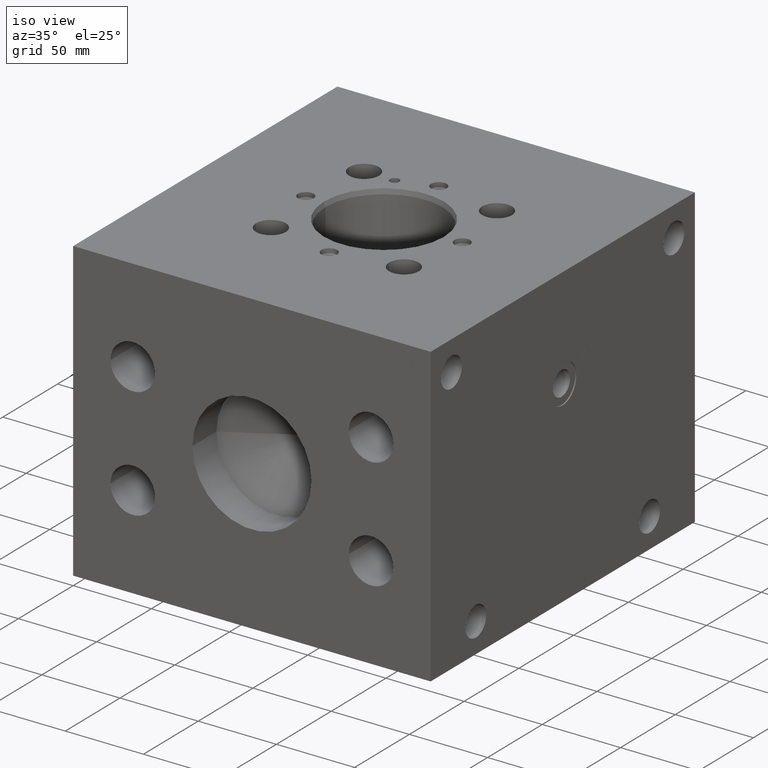
[diagram: clean part render]
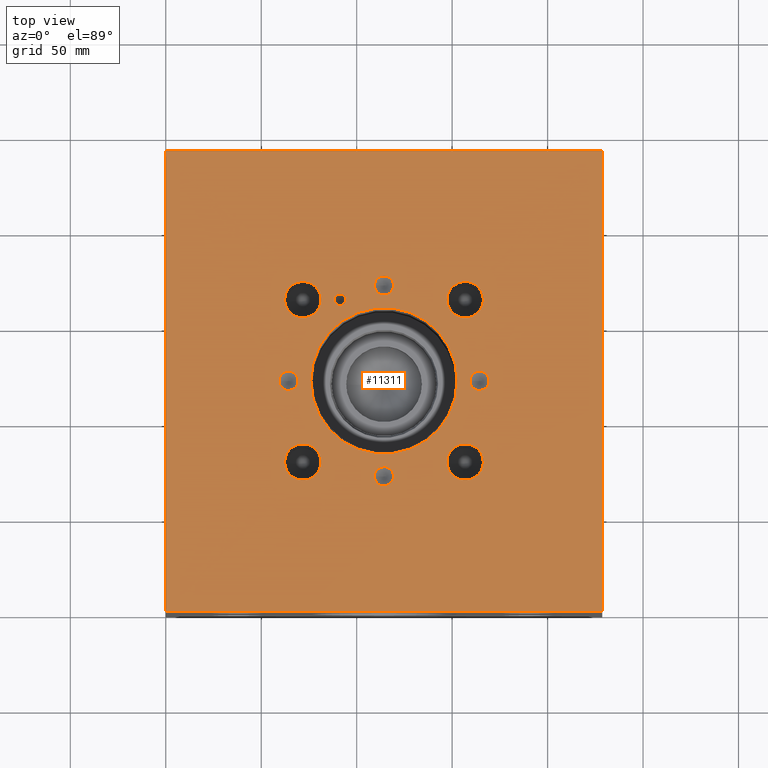
[diagram: tour spotlight — one face highlighted and labeled with its STEP entity id]
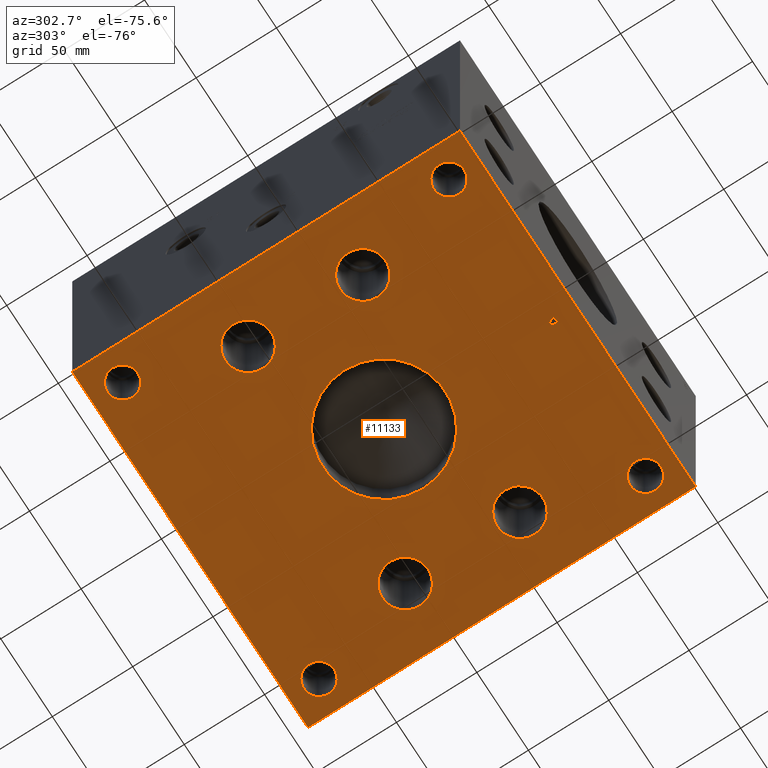
[diagram: tour spotlight — one face highlighted and labeled with its STEP entity id]
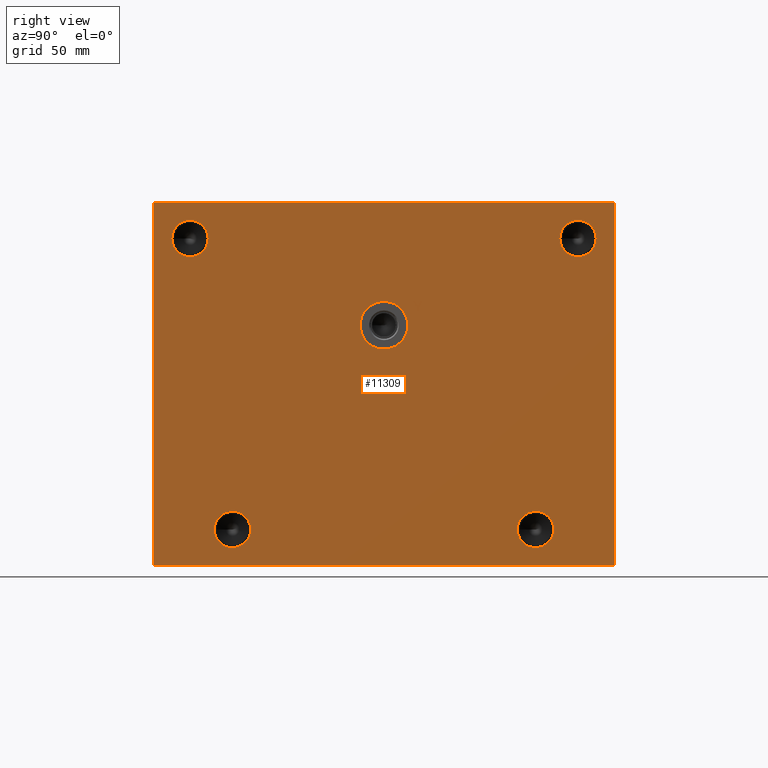
[diagram: tour spotlight — one face highlighted and labeled with its STEP entity id]
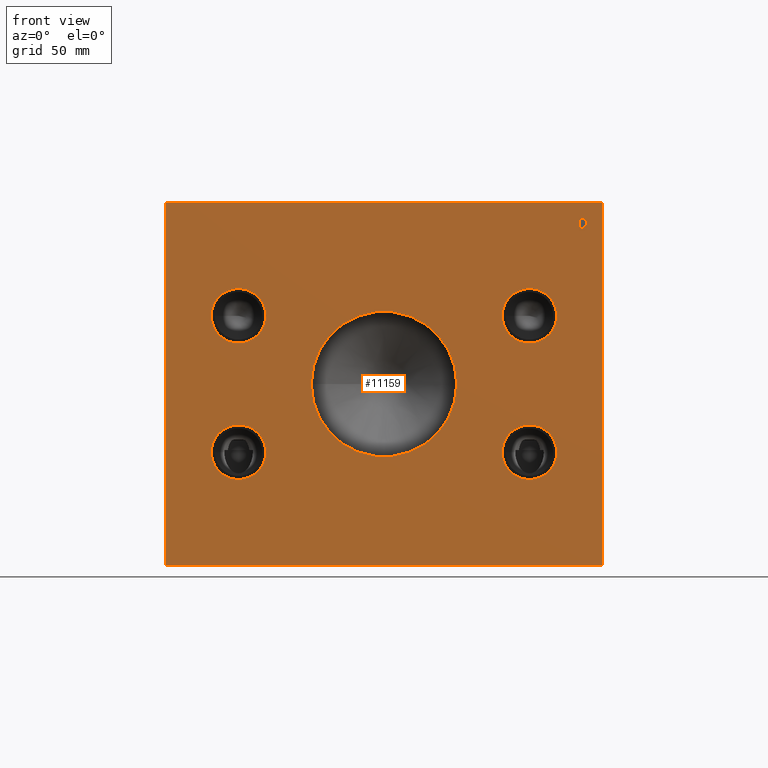
[diagram: tour spotlight — one face highlighted and labeled with its STEP entity id]
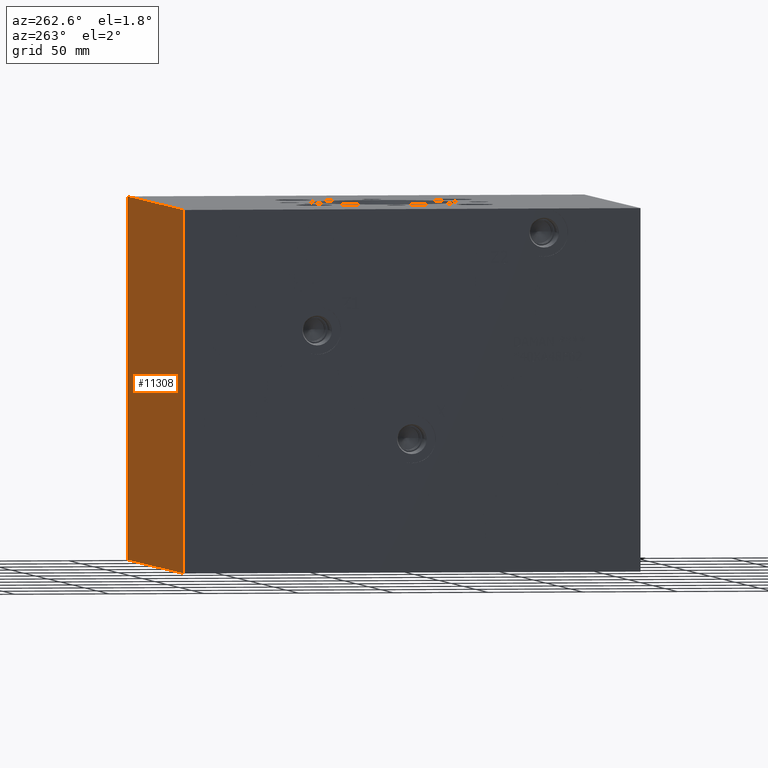
[diagram: tour spotlight — one face highlighted and labeled with its STEP entity id]
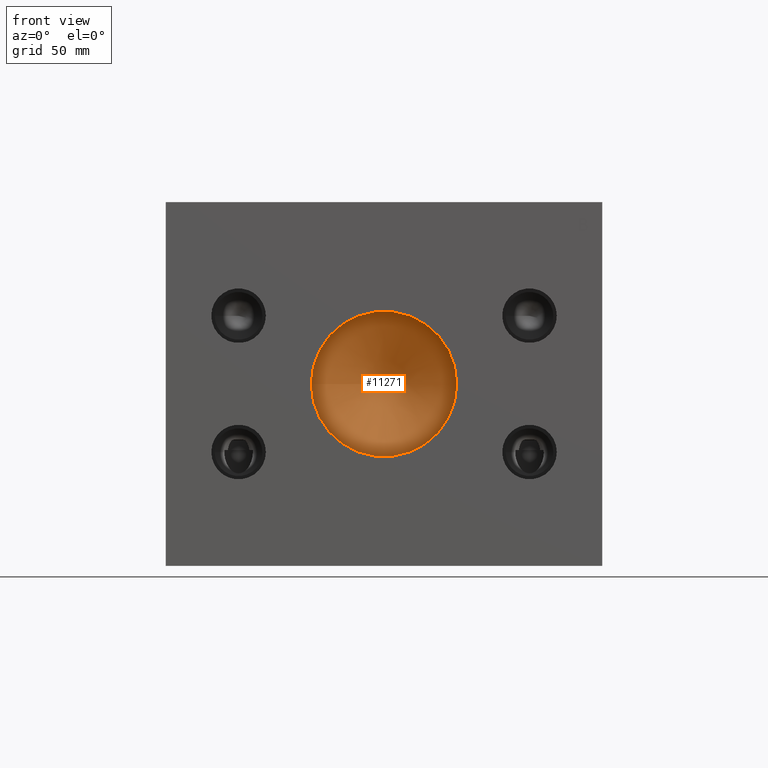
[diagram: tour spotlight — one face highlighted and labeled with its STEP entity id]
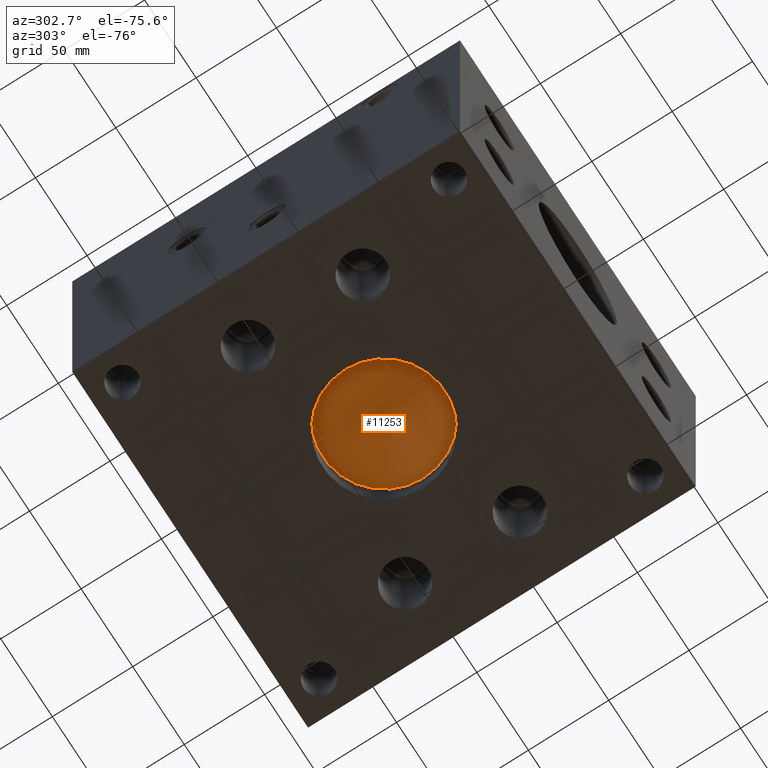
[diagram: tour spotlight — one face highlighted and labeled with its STEP entity id]
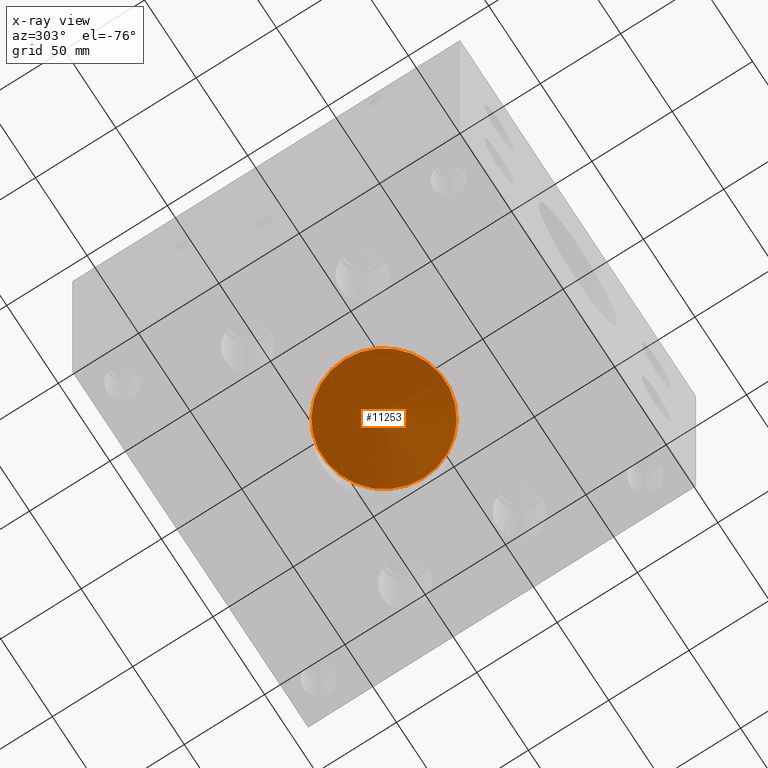
[diagram: x-ray of the same camera — body ghosted, this tour face saturated]
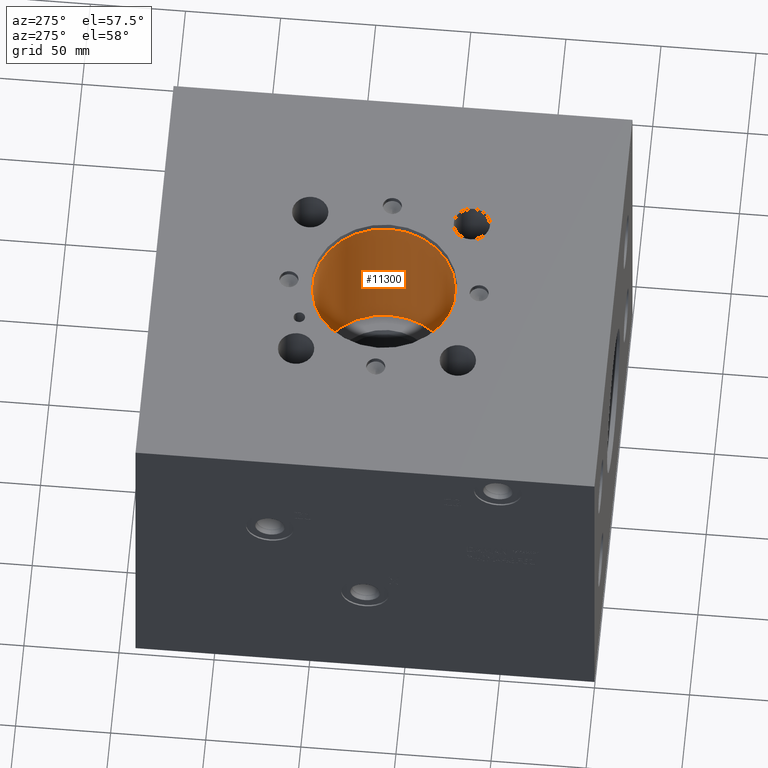
[diagram: tour spotlight — one face highlighted and labeled with its STEP entity id]
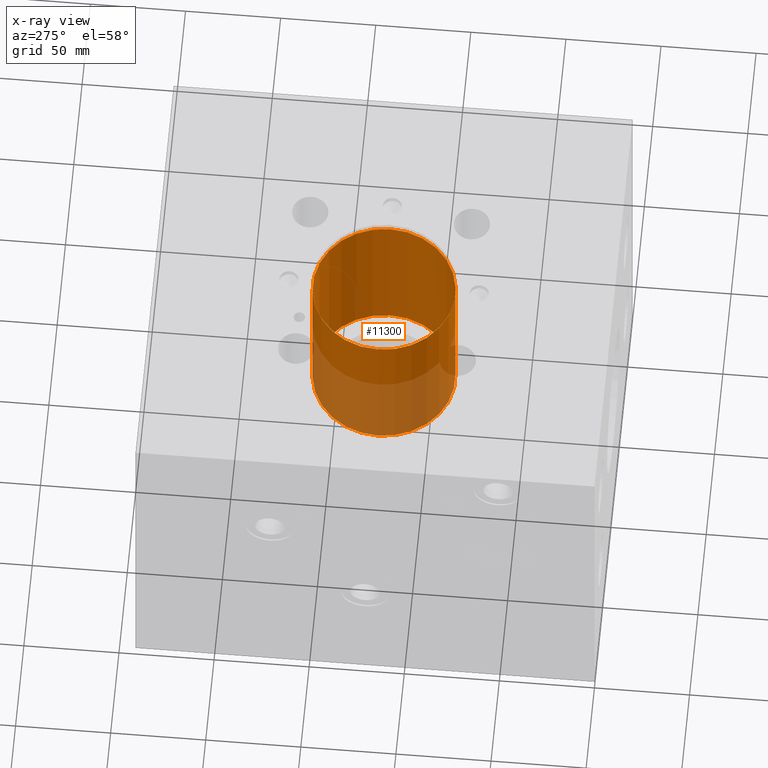
[diagram: x-ray of the same camera — body ghosted, this tour face saturated]
A machine part: a face-by-face anatomy tour. The part has 575 B-rep faces; the first image is the clean iso view, then the 8 largest visible faces are spotlighted one at a time (largest first), each with its STEP entity span.

Face 1 — top view, entity #11311. In plain terms, the highlighted planar face has unit normal (0, 0, 1).
Definition (entity closure, byte-faithful):
#336=CIRCLE('',#11971,2.9972);
#337=CIRCLE('',#11972,2.9972);
#340=CIRCLE('',#11977,5.0038);
#341=CIRCLE('',#11978,5.0038);
#344=CIRCLE('',#11983,5.0038);
#345=CIRCLE('',#11984,5.0038);
#348=CIRCLE('',#11989,5.0038);
#349=CIRCLE('',#11990,5.0038);
#352=CIRCLE('',#11995,5.0038);
#353=CIRCLE('',#11996,5.0038);
#359=CIRCLE('',#12005,9.525);
#360=CIRCLE('',#12006,9.525);
#366=CIRCLE('',#12016,9.525);
#367=CIRCLE('',#12017,9.525);
#373=CIRCLE('',#12027,9.525);
#374=CIRCLE('',#12028,9.525);
#380=CIRCLE('',#12038,9.525);
#381=CIRCLE('',#12039,9.525);
#382=CIRCLE('',#12042,38.3159);
#383=CIRCLE('',#12043,38.3159);
#782=FACE_BOUND('',#2030,.T.);
#783=FACE_BOUND('',#2031,.T.);
#784=FACE_BOUND('',#2032,.T.);
#785=FACE_BOUND('',#2033,.T.);
#786=FACE_BOUND('',#2034,.T.);
#787=FACE_BOUND('',#2035,.T.);
#788=FACE_BOUND('',#2036,.T.);
#789=FACE_BOUND('',#2037,.T.);
#790=FACE_BOUND('',#2038,.T.);
#791=FACE_BOUND('',#2039,.T.);
#1365=FACE_OUTER_BOUND('',#2029,.T.);
#2029=EDGE_LOOP('',(#9936,#9937,#9938,#9939));
#2030=EDGE_LOOP('',(#9940,#9941));
#2031=EDGE_LOOP('',(#9942,#9943));
#2032=EDGE_LOOP('',(#9944,#9945));
#2033=EDGE_LOOP('',(#9946,#9947));
#2034=EDGE_LOOP('',(#9948,#9949));
#2035=EDGE_LOOP('',(#9950,#9951));
#2036=EDGE_LOOP('',(#9952,#9953));
#2037=EDGE_LOOP('',(#9954,#9955));
#2038=EDGE_LOOP('',(#9956,#9957));
#2039=EDGE_LOOP('',(#9958,#9959));
#2395=LINE('',#16408,#3483);
#3011=LINE('',#18290,#4099);
#3126=LINE('',#19207,#4214);
#3128=LINE('',#19210,#4216);
#3483=VECTOR('',#12643,10.);
#4099=VECTOR('',#13745,10.);
#4214=VECTOR('',#14638,10.);
#4216=VECTOR('',#14642,10.);
#4535=VERTEX_POINT('',#16405);
#4536=VERTEX_POINT('',#16407);
#5015=VERTEX_POINT('',#18288);
#5223=VERTEX_POINT('',#19012);
#5224=VERTEX_POINT('',#19013);
#5228=VERTEX_POINT('',#19025);
#5229=VERTEX_POINT('',#19026);
#5233=VERTEX_POINT('',#19038);
#5234=VERTEX_POINT('',#19039);
#5238=VERTEX_POINT('',#19051);
#5239=VERTEX_POINT('',#19052);
#5243=VERTEX_POINT('',#19064);
#5244=VERTEX_POINT('',#19065);
#5251=VERTEX_POINT('',#19084);
#5252=VERTEX_POINT('',#19085);
#5259=VERTEX_POINT('',#19106);
#5260=VERTEX_POINT('',#19107);
#5267=VERTEX_POINT('',#19128);
#5268=VERTEX_POINT('',#19129);
#5275=VERTEX_POINT('',#19150);
#5276=VERTEX_POINT('',#19151);
#5277=VERTEX_POINT('',#19158);
#5278=VERTEX_POINT('',#19159);
#5294=VERTEX_POINT('',#19206);
#5771=EDGE_CURVE('',#4536,#4535,#2395,.T.);
#6479=EDGE_CURVE('',#4535,#5015,#3011,.T.);
#6759=EDGE_CURVE('',#5223,#5224,#336,.T.);
#6760=EDGE_CURVE('',#5224,#5223,#337,.T.);
#6765=EDGE_CURVE('',#5228,#5229,#340,.T.);
#6766=EDGE_CURVE('',#5229,#5228,#341,.T.);
#6771=EDGE_CURVE('',#5233,#5234,#344,.T.);
#6772=EDGE_CURVE('',#5234,#5233,#345,.T.);
#6777=EDGE_CURVE('',#5238,#5239,#348,.T.);
#6778=EDGE_CURVE('',#5239,#5238,#349,.T.);
#6783=EDGE_CURVE('',#5243,#5244,#352,.T.);
#6784=EDGE_CURVE('',#5244,#5243,#353,.T.);
#6792=EDGE_CURVE('',#5251,#5252,#359,.T.);
#6793=EDGE_CURVE('',#5252,#5251,#360,.T.);
#6802=EDGE_CURVE('',#5259,#5260,#366,.T.);
#6803=EDGE_CURVE('',#5260,#5259,#367,.T.);
#6812=EDGE_CURVE('',#5267,#5268,#373,.T.);
#6813=EDGE_CURVE('',#5268,#5267,#374,.T.);
#6822=EDGE_CURVE('',#5275,#5276,#380,.T.);
#6823=EDGE_CURVE('',#5276,#5275,#381,.T.);
#6826=EDGE_CURVE('',#5277,#5278,#382,.T.);
#6827=EDGE_CURVE('',#5278,#5277,#383,.T.);
#6848=EDGE_CURVE('',#5294,#4536,#3126,.T.);
#6850=EDGE_CURVE('',#5015,#5294,#3128,.T.);
#9936=ORIENTED_EDGE('',*,*,#6479,.T.);
#9937=ORIENTED_EDGE('',*,*,#6850,.T.);
#9938=ORIENTED_EDGE('',*,*,#6848,.T.);
#9939=ORIENTED_EDGE('',*,*,#5771,.T.);
#9940=ORIENTED_EDGE('',*,*,#6759,.T.);
#9941=ORIENTED_EDGE('',*,*,#6760,.T.);
#9942=ORIENTED_EDGE('',*,*,#6765,.T.);
#9943=ORIENTED_EDGE('',*,*,#6766,.T.);
#9944=ORIENTED_EDGE('',*,*,#6771,.T.);
#9945=ORIENTED_EDGE('',*,*,#6772,.T.);
#9946=ORIENTED_EDGE('',*,*,#6777,.T.);
#9947=ORIENTED_EDGE('',*,*,#6778,.T.);
#9948=ORIENTED_EDGE('',*,*,#6783,.T.);
#9949=ORIENTED_EDGE('',*,*,#6784,.T.);
#9950=ORIENTED_EDGE('',*,*,#6792,.T.);
#9951=ORIENTED_EDGE('',*,*,#6793,.T.);
#9952=ORIENTED_EDGE('',*,*,#6802,.T.);
#9953=ORIENTED_EDGE('',*,*,#6803,.T.);
#9954=ORIENTED_EDGE('',*,*,#6812,.T.);
#9955=ORIENTED_EDGE('',*,*,#6813,.T.);
#9956=ORIENTED_EDGE('',*,*,#6822,.T.);
#9957=ORIENTED_EDGE('',*,*,#6823,.T.);
#9958=ORIENTED_EDGE('',*,*,#6826,.T.);
#9959=ORIENTED_EDGE('',*,*,#6827,.T.);
#10325=PLANE('',#12069);
#11311=ADVANCED_FACE('',(#1365,#782,#783,#784,#785,#786,#787,#788,#789,
#790,#791),#10325,.T.);
#11971=AXIS2_PLACEMENT_3D('',#19014,#14419,#14420);
#11972=AXIS2_PLACEMENT_3D('',#19015,#14421,#14422);
#11977=AXIS2_PLACEMENT_3D('',#19027,#14433,#14434);
#11978=AXIS2_PLACEMENT_3D('',#19028,#14435,#14436);
#11983=AXIS2_PLACEMENT_3D('',#19040,#14447,#14448);
#11984=AXIS2_PLACEMENT_3D('',#19041,#14449,#14450);
#11989=AXIS2_PLACEMENT_3D('',#19053,#14461,#14462);
#11990=AXIS2_PLACEMENT_3D('',#19054,#14463,#14464);
#11995=AXIS2_PLACEMENT_3D('',#19066,#14475,#14476);
#11996=AXIS2_PLACEMENT_3D('',#19067,#14477,#14478);
#12005=AXIS2_PLACEMENT_3D('',#19086,#14497,#14498);
#12006=AXIS2_PLACEMENT_3D('',#19087,#14499,#14500);
#12016=AXIS2_PLACEMENT_3D('',#19108,#14522,#14523);
#12017=AXIS2_PLACEMENT_3D('',#19109,#14524,#14525);
#12027=AXIS2_PLACEMENT_3D('',#19130,#14547,#14548);
#12028=AXIS2_PLACEMENT_3D('',#19131,#14549,#14550);
#12038=AXIS2_PLACEMENT_3D('',#19152,#14572,#14573);
#12039=AXIS2_PLACEMENT_3D('',#19153,#14574,#14575);
#12042=AXIS2_PLACEMENT_3D('',#19160,#14582,#14583);
#12043=AXIS2_PLACEMENT_3D('',#19161,#14584,#14585);
#12069=AXIS2_PLACEMENT_3D('',#19212,#14645,#14646);
#12643=DIRECTION('',(0.,-1.,0.));
#13745=DIRECTION('',(1.,0.,0.));
#14419=DIRECTION('center_axis',(0.,0.,-1.));
#14420=DIRECTION('ref_axis',(1.,0.,0.));
#14421=DIRECTION('center_axis',(0.,0.,-1.));
#14422=DIRECTION('ref_axis',(1.,0.,0.));
#14433=DIRECTION('center_axis',(0.,0.,-1.));
#14434=DIRECTION('ref_axis',(1.,0.,0.));
#14435=DIRECTION('center_axis',(0.,0.,-1.));
#14436=DIRECTION('ref_axis',(1.,0.,0.));
#14447=DIRECTION('center_axis',(0.,0.,-1.));
#14448=DIRECTION('ref_axis',(1.,0.,0.));
#14449=DIRECTION('center_axis',(0.,0.,-1.));
#14450=DIRECTION('ref_axis',(1.,0.,0.));
#14461=DIRECTION('center_axis',(0.,0.,-1.));
#14462=DIRECTION('ref_axis',(1.,0.,0.));
#14463=DIRECTION('center_axis',(0.,0.,-1.));
#14464=DIRECTION('ref_axis',(1.,0.,0.));
#14475=DIRECTION('center_axis',(0.,0.,-1.));
#14476=DIRECTION('ref_axis',(1.,0.,0.));
#14477=DIRECTION('center_axis',(0.,0.,-1.));
#14478=DIRECTION('ref_axis',(1.,0.,0.));
#14497=DIRECTION('center_axis',(0.,0.,-1.));
#14498=DIRECTION('ref_axis',(1.,0.,0.));
#14499=DIRECTION('center_axis',(0.,0.,-1.));
#14500=DIRECTION('ref_axis',(1.,0.,0.));
#14522=DIRECTION('center_axis',(0.,0.,-1.));
#14523=DIRECTION('ref_axis',(1.,0.,0.));
#14524=DIRECTION('center_axis',(0.,0.,-1.));
#14525=DIRECTION('ref_axis',(1.,0.,0.));
#14547=DIRECTION('center_axis',(0.,0.,-1.));
#14548=DIRECTION('ref_axis',(1.,0.,0.));
#14549=DIRECTION('center_axis',(0.,0.,-1.));
#14550=DIRECTION('ref_axis',(1.,0.,0.));
#14572=DIRECTION('center_axis',(0.,0.,-1.));
#14573=DIRECTION('ref_axis',(1.,0.,0.));
#14574=DIRECTION('center_axis',(0.,0.,-1.));
#14575=DIRECTION('ref_axis',(1.,0.,0.));
#14582=DIRECTION('center_axis',(0.,0.,-1.));
#14583=DIRECTION('ref_axis',(1.,0.,0.));
#14584=DIRECTION('center_axis',(0.,0.,-1.));
#14585=DIRECTION('ref_axis',(1.,0.,0.));
#14638=DIRECTION('',(-1.,0.,0.));
#14642=DIRECTION('',(0.,1.,0.));
#14645=DIRECTION('center_axis',(0.,0.,1.));
#14646=DIRECTION('ref_axis',(1.,0.,0.));
#16405=CARTESIAN_POINT('',(0.,0.,190.5));
#16407=CARTESIAN_POINT('',(0.,241.3,190.5));
#16408=CARTESIAN_POINT('',(0.,241.3,190.5));
#18288=CARTESIAN_POINT('',(228.6,0.,190.5));
#18290=CARTESIAN_POINT('',(0.,0.,190.5));
#19012=CARTESIAN_POINT('',(94.2848,163.1696,190.5));
#19013=CARTESIAN_POINT('',(88.2904,163.1696,190.5));
#19014=CARTESIAN_POINT('Origin',(91.2876,163.1696,190.5));
#19015=CARTESIAN_POINT('Origin',(91.2876,163.1696,190.5));
#19025=CARTESIAN_POINT('',(69.2912,120.6499978,190.5));
#19026=CARTESIAN_POINT('',(59.2836,120.6499978,190.5));
#19027=CARTESIAN_POINT('Origin',(64.2874,120.6499978,190.5));
#19028=CARTESIAN_POINT('Origin',(64.2874,120.6499978,190.5));
#19038=CARTESIAN_POINT('',(119.3038022,70.6374,190.5));
#19039=CARTESIAN_POINT('',(109.2962022,70.6374,190.5));
#19040=CARTESIAN_POINT('Origin',(114.3000022,70.6374,190.5));
#19041=CARTESIAN_POINT('Origin',(114.3000022,70.6374,190.5));
#19051=CARTESIAN_POINT('',(169.3164,120.6499978,190.5));
#19052=CARTESIAN_POINT('',(159.3088,120.6499978,190.5));
#19053=CARTESIAN_POINT('Origin',(164.3126,120.6499978,190.5));
#19054=CARTESIAN_POINT('Origin',(164.3126,120.6499978,190.5));
#19064=CARTESIAN_POINT('',(119.3038022,170.6626,190.5));
#19065=CARTESIAN_POINT('',(109.2962022,170.6626,190.5));
#19066=CARTESIAN_POINT('Origin',(114.3000022,170.6626,190.5));
#19067=CARTESIAN_POINT('Origin',(114.3000022,170.6626,190.5));
#19084=CARTESIAN_POINT('',(81.3054,163.1696,190.5));
#19085=CARTESIAN_POINT('',(62.2554,163.1696,190.5));
#19086=CARTESIAN_POINT('Origin',(71.7804,163.1696,190.5));
#19087=CARTESIAN_POINT('Origin',(71.7804,163.1696,190.5));
#19106=CARTESIAN_POINT('',(166.3192,78.1558,190.5));
#19107=CARTESIAN_POINT('',(147.2692,78.1558,190.5));
#19108=CARTESIAN_POINT('Origin',(156.7942,78.1558,190.5));
#19109=CARTESIAN_POINT('Origin',(156.7942,78.1558,190.5));
#19128=CARTESIAN_POINT('',(81.3054,78.1304,190.5));
#19129=CARTESIAN_POINT('',(62.2554,78.1304,190.5));
#19130=CARTESIAN_POINT('Origin',(71.7804,78.1304,190.5));
#19131=CARTESIAN_POINT('Origin',(71.7804,78.1304,190.5));
#19150=CARTESIAN_POINT('',(166.3446,163.1696,190.5));
#19151=CARTESIAN_POINT('',(147.2946,163.1696,190.5));
#19152=CARTESIAN_POINT('Origin',(156.8196,163.1696,190.5));
#19153=CARTESIAN_POINT('Origin',(156.8196,163.1696,190.5));
#19158=CARTESIAN_POINT('',(152.6159,120.65,190.5));
#19159=CARTESIAN_POINT('',(75.9841,120.65,190.499905870019));
#19160=CARTESIAN_POINT('Origin',(114.3,120.65,190.5));
#19161=CARTESIAN_POINT('Origin',(114.3,120.65,190.5));
#19206=CARTESIAN_POINT('',(228.6,241.3,190.5));
#19207=CARTESIAN_POINT('',(228.6,241.3,190.5));
#19210=CARTESIAN_POINT('',(228.6,0.,190.5));
#19212=CARTESIAN_POINT('Origin',(114.3,120.65,190.5));

Face 2 — auxiliary view, entity #11133. In plain terms, the highlighted planar face has unit normal (0, 0, 1).
Definition (entity closure, byte-faithful):
#140=CIRCLE('',#11648,38.1);
#141=CIRCLE('',#11649,38.1);
#142=CIRCLE('',#11650,14.2875);
#143=CIRCLE('',#11651,14.2875);
#144=CIRCLE('',#11652,14.2875);
#145=CIRCLE('',#11653,14.2875);
#146=CIRCLE('',#11654,14.2875);
#147=CIRCLE('',#11655,14.2875);
#148=CIRCLE('',#11656,14.2875);
#149=CIRCLE('',#11657,14.2875);
#150=CIRCLE('',#11658,9.525);
#151=CIRCLE('',#11659,9.525);
#152=CIRCLE('',#11660,9.525);
#153=CIRCLE('',#11661,9.525);
#154=CIRCLE('',#11662,9.525);
#155=CIRCLE('',#11663,9.525);
#156=CIRCLE('',#11664,9.525);
#157=CIRCLE('',#11665,9.525);
#730=FACE_BOUND('',#1800,.T.);
#731=FACE_BOUND('',#1801,.T.);
#732=FACE_BOUND('',#1802,.T.);
#733=FACE_BOUND('',#1803,.T.);
#734=FACE_BOUND('',#1804,.T.);
#735=FACE_BOUND('',#1805,.T.);
#736=FACE_BOUND('',#1806,.T.);
#737=FACE_BOUND('',#1807,.T.);
#738=FACE_BOUND('',#1808,.T.);
#739=FACE_BOUND('',#1809,.T.);
#1187=FACE_OUTER_BOUND('',#1799,.T.);
#1799=EDGE_LOOP('',(#8998,#8999,#9000,#9001));
#1800=EDGE_LOOP('',(#9002,#9003));
#1801=EDGE_LOOP('',(#9004,#9005));
#1802=EDGE_LOOP('',(#9006,#9007));
#1803=EDGE_LOOP('',(#9008,#9009));
#1804=EDGE_LOOP('',(#9010,#9011));
#1805=EDGE_LOOP('',(#9012,#9013));
#1806=EDGE_LOOP('',(#9014,#9015));
#1807=EDGE_LOOP('',(#9016,#9017));
#1808=EDGE_LOOP('',(#9018,#9019));
#1809=EDGE_LOOP('',(#9020,#9021,#9022,#9023,#9024,#9025,#9026,#9027));
#2393=LINE('',#16404,#3481);
#2939=LINE('',#17872,#4027);
#2943=LINE('',#17880,#4031);
#2946=LINE('',#17886,#4034);
#2949=LINE('',#17892,#4037);
#2952=LINE('',#17898,#4040);
#2955=LINE('',#17904,#4043);
#2958=LINE('',#17910,#4046);
#2961=LINE('',#17915,#4049);
#2963=LINE('',#17920,#4051);
#2964=LINE('',#17922,#4052);
#2965=LINE('',#17923,#4053);
#3481=VECTOR('',#12641,10.);
#4027=VECTOR('',#13595,10.);
#4031=VECTOR('',#13601,10.);
#4034=VECTOR('',#13606,10.);
#4037=VECTOR('',#13611,10.);
#4040=VECTOR('',#13616,10.);
#4043=VECTOR('',#13621,10.);
#4046=VECTOR('',#13626,10.);
#4049=VECTOR('',#13631,10.);
#4051=VECTOR('',#13637,10.);
#4052=VECTOR('',#13638,10.);
#4053=VECTOR('',#13639,10.);
#4533=VERTEX_POINT('',#16402);
#4534=VERTEX_POINT('',#16403);
#4931=VERTEX_POINT('',#17870);
#4932=VERTEX_POINT('',#17871);
#4935=VERTEX_POINT('',#17879);
#4937=VERTEX_POINT('',#17885);
#4939=VERTEX_POINT('',#17891);
#4941=VERTEX_POINT('',#17897);
#4943=VERTEX_POINT('',#17903);
#4945=VERTEX_POINT('',#17909);
#4947=VERTEX_POINT('',#17919);
#4948=VERTEX_POINT('',#17921);
#4949=VERTEX_POINT('',#17924);
#4950=VERTEX_POINT('',#17925);
#4951=VERTEX_POINT('',#17928);
#4952=VERTEX_POINT('',#17929);
#4953=VERTEX_POINT('',#17932);
#4954=VERTEX_POINT('',#17933);
#4955=VERTEX_POINT('',#17936);
#4956=VERTEX_POINT('',#17937);
#4957=VERTEX_POINT('',#17940);
#4958=VERTEX_POINT('',#17941);
#4959=VERTEX_POINT('',#17944);
#4960=VERTEX_POINT('',#17945);
#4961=VERTEX_POINT('',#17948);
#4962=VERTEX_POINT('',#17949);
#4963=VERTEX_POINT('',#17952);
#4964=VERTEX_POINT('',#17953);
#4965=VERTEX_POINT('',#17956);
#4966=VERTEX_POINT('',#17957);
#5769=EDGE_CURVE('',#4533,#4534,#2393,.T.);
#6361=EDGE_CURVE('',#4931,#4932,#2939,.T.);
#6365=EDGE_CURVE('',#4935,#4931,#2943,.T.);
#6368=EDGE_CURVE('',#4937,#4935,#2946,.T.);
#6371=EDGE_CURVE('',#4939,#4937,#2949,.T.);
#6374=EDGE_CURVE('',#4941,#4939,#2952,.T.);
#6377=EDGE_CURVE('',#4943,#4941,#2955,.T.);
#6380=EDGE_CURVE('',#4945,#4943,#2958,.T.);
#6383=EDGE_CURVE('',#4932,#4945,#2961,.T.);
#6385=EDGE_CURVE('',#4534,#4947,#2963,.T.);
#6386=EDGE_CURVE('',#4948,#4533,#2964,.T.);
#6387=EDGE_CURVE('',#4947,#4948,#2965,.T.);
#6388=EDGE_CURVE('',#4949,#4950,#140,.T.);
#6389=EDGE_CURVE('',#4950,#4949,#141,.T.);
#6390=EDGE_CURVE('',#4951,#4952,#142,.T.);
#6391=EDGE_CURVE('',#4952,#4951,#143,.T.);
#6392=EDGE_CURVE('',#4953,#4954,#144,.T.);
#6393=EDGE_CURVE('',#4954,#4953,#145,.T.);
#6394=EDGE_CURVE('',#4955,#4956,#146,.T.);
#6395=EDGE_CURVE('',#4956,#4955,#147,.T.);
#6396=EDGE_CURVE('',#4957,#4958,#148,.T.);
#6397=EDGE_CURVE('',#4958,#4957,#149,.T.);
#6398=EDGE_CURVE('',#4959,#4960,#150,.T.);
#6399=EDGE_CURVE('',#4960,#4959,#151,.T.);
#6400=EDGE_CURVE('',#4961,#4962,#152,.T.);
#6401=EDGE_CURVE('',#4962,#4961,#153,.T.);
#6402=EDGE_CURVE('',#4963,#4964,#154,.T.);
#6403=EDGE_CURVE('',#4964,#4963,#155,.T.);
#6404=EDGE_CURVE('',#4965,#4966,#156,.T.);
#6405=EDGE_CURVE('',#4966,#4965,#157,.T.);
#8998=ORIENTED_EDGE('',*,*,#6385,.F.);
#8999=ORIENTED_EDGE('',*,*,#5769,.F.);
#9000=ORIENTED_EDGE('',*,*,#6386,.F.);
#9001=ORIENTED_EDGE('',*,*,#6387,.F.);
#9002=ORIENTED_EDGE('',*,*,#6388,.T.);
#9003=ORIENTED_EDGE('',*,*,#6389,.T.);
#9004=ORIENTED_EDGE('',*,*,#6390,.T.);
#9005=ORIENTED_EDGE('',*,*,#6391,.T.);
#9006=ORIENTED_EDGE('',*,*,#6392,.T.);
#9007=ORIENTED_EDGE('',*,*,#6393,.T.);
#9008=ORIENTED_EDGE('',*,*,#6394,.T.);
#9009=ORIENTED_EDGE('',*,*,#6395,.T.);
#9010=ORIENTED_EDGE('',*,*,#6396,.T.);
#9011=ORIENTED_EDGE('',*,*,#6397,.T.);
#9012=ORIENTED_EDGE('',*,*,#6398,.T.);
#9013=ORIENTED_EDGE('',*,*,#6399,.T.);
#9014=ORIENTED_EDGE('',*,*,#6400,.T.);
#9015=ORIENTED_EDGE('',*,*,#6401,.T.);
#9016=ORIENTED_EDGE('',*,*,#6402,.T.);
#9017=ORIENTED_EDGE('',*,*,#6403,.T.);
#9018=ORIENTED_EDGE('',*,*,#6404,.T.);
#9019=ORIENTED_EDGE('',*,*,#6405,.T.);
#9020=ORIENTED_EDGE('',*,*,#6361,.T.);
#9021=ORIENTED_EDGE('',*,*,#6383,.T.);
#9022=ORIENTED_EDGE('',*,*,#6380,.T.);
#9023=ORIENTED_EDGE('',*,*,#6377,.T.);
#9024=ORIENTED_EDGE('',*,*,#6374,.T.);
#9025=ORIENTED_EDGE('',*,*,#6371,.T.);
#9026=ORIENTED_EDGE('',*,*,#6368,.T.);
#9027=ORIENTED_EDGE('',*,*,#6365,.T.);
#10277=PLANE('',#11647);
#11133=ADVANCED_FACE('',(#1187,#730,#731,#732,#733,#734,#735,#736,#737,
#738,#739),#10277,.F.);
#11647=AXIS2_PLACEMENT_3D('',#17918,#13635,#13636);
#11648=AXIS2_PLACEMENT_3D('',#17926,#13640,#13641);
#11649=AXIS2_PLACEMENT_3D('',#17927,#13642,#13643);
#11650=AXIS2_PLACEMENT_3D('',#17930,#13644,#13645);
#11651=AXIS2_PLACEMENT_3D('',#17931,#13646,#13647);
#11652=AXIS2_PLACEMENT_3D('',#17934,#13648,#13649);
#11653=AXIS2_PLACEMENT_3D('',#17935,#13650,#13651);
#11654=AXIS2_PLACEMENT_3D('',#17938,#13652,#13653);
#11655=AXIS2_PLACEMENT_3D('',#17939,#13654,#13655);
#11656=AXIS2_PLACEMENT_3D('',#17942,#13656,#13657);
#11657=AXIS2_PLACEMENT_3D('',#17943,#13658,#13659);
#11658=AXIS2_PLACEMENT_3D('',#17946,#13660,#13661);
#11659=AXIS2_PLACEMENT_3D('',#17947,#13662,#13663);
#11660=AXIS2_PLACEMENT_3D('',#17950,#13664,#13665);
#11661=AXIS2_PLACEMENT_3D('',#17951,#13666,#13667);
#11662=AXIS2_PLACEMENT_3D('',#17954,#13668,#13669);
#11663=AXIS2_PLACEMENT_3D('',#17955,#13670,#13671);
#11664=AXIS2_PLACEMENT_3D('',#17958,#13672,#13673);
#11665=AXIS2_PLACEMENT_3D('',#17959,#13674,#13675);
#12641=DIRECTION('',(0.,-1.,0.));
#13595=DIRECTION('',(1.,0.,0.));
#13601=DIRECTION('',(0.308774363938386,-0.95113531748876,0.));
#13606=DIRECTION('',(1.,0.,0.));
#13611=DIRECTION('',(0.308774363938386,0.95113531748876,0.));
#13616=DIRECTION('',(1.,0.,0.));
#13621=DIRECTION('',(-0.319451166674565,-0.947602739606772,0.));
#13626=DIRECTION('',(-1.,0.,0.));
#13631=DIRECTION('',(-0.319451166674572,0.947602739606769,0.));
#13635=DIRECTION('center_axis',(0.,0.,1.));
#13636=DIRECTION('ref_axis',(1.,0.,0.));
#13637=DIRECTION('',(1.,0.,0.));
#13638=DIRECTION('',(-1.,0.,0.));
#13639=DIRECTION('',(0.,1.,0.));
#13640=DIRECTION('center_axis',(0.,0.,1.));
#13641=DIRECTION('ref_axis',(1.,0.,0.));
#13642=DIRECTION('center_axis',(0.,0.,1.));
#13643=DIRECTION('ref_axis',(1.,0.,0.));
#13644=DIRECTION('center_axis',(0.,0.,1.));
#13645=DIRECTION('ref_axis',(1.,0.,0.));
#13646=DIRECTION('center_axis',(0.,0.,1.));
#13647=DIRECTION('ref_axis',(1.,0.,0.));
#13648=DIRECTION('center_axis',(0.,0.,1.));
#13649=DIRECTION('ref_axis',(1.,0.,0.));
#13650=DIRECTION('center_axis',(0.,0.,1.));
#13651=DIRECTION('ref_axis',(1.,0.,0.));
#13652=DIRECTION('center_axis',(0.,0.,1.));
#13653=DIRECTION('ref_axis',(1.,0.,0.));
#13654=DIRECTION('center_axis',(0.,0.,1.));
#13655=DIRECTION('ref_axis',(1.,0.,0.));
#13656=DIRECTION('center_axis',(0.,0.,1.));
#13657=DIRECTION('ref_axis',(1.,0.,0.));
#13658=DIRECTION('center_axis',(0.,0.,1.));
#13659=DIRECTION('ref_axis',(1.,0.,0.));
#13660=DIRECTION('center_axis',(0.,0.,1.));
#13661=DIRECTION('ref_axis',(1.,0.,0.));
#13662=DIRECTION('center_axis',(0.,0.,1.));
#13663=DIRECTION('ref_axis',(1.,0.,0.));
#13664=DIRECTION('center_axis',(0.,0.,1.));
#13665=DIRECTION('ref_axis',(1.,0.,0.));
#13666=DIRECTION('center_axis',(0.,0.,1.));
#13667=DIRECTION('ref_axis',(1.,0.,0.));
#13668=DIRECTION('center_axis',(0.,0.,1.));
#13669=DIRECTION('ref_axis',(1.,0.,0.));
#13670=DIRECTION('center_axis',(0.,0.,1.));
#13671=DIRECTION('ref_axis',(1.,0.,0.));
#13672=DIRECTION('center_axis',(0.,0.,1.));
#13673=DIRECTION('ref_axis',(1.,0.,0.));
#13674=DIRECTION('center_axis',(0.,0.,1.));
#13675=DIRECTION('ref_axis',(1.,0.,0.));
#16402=CARTESIAN_POINT('',(0.,241.3,0.));
#16403=CARTESIAN_POINT('',(0.,0.,0.));
#16404=CARTESIAN_POINT('',(0.,241.3,0.));
#17870=CARTESIAN_POINT('',(115.07445301059,11.1125,0.));
#17871=CARTESIAN_POINT('',(115.928666936173,11.1125,0.));
#17872=CARTESIAN_POINT('',(114.687226505295,11.1125,0.));
#17879=CARTESIAN_POINT('',(114.498115904173,12.8878241224459,0.));
#17880=CARTESIAN_POINT('',(98.6645394469119,61.660894459543,0.));
#17885=CARTESIAN_POINT('',(112.074412537008,12.8878241224459,0.));
#17886=CARTESIAN_POINT('',(113.187206268504,12.8878241224459,0.));
#17891=CARTESIAN_POINT('',(111.49807543059,11.1125,0.));
#17892=CARTESIAN_POINT('',(127.716471640179,61.0709526098927,0.));
#17897=CARTESIAN_POINT('',(110.607840435857,11.1125,0.));
#17898=CARTESIAN_POINT('',(112.453920217928,11.1125,0.));
#17903=CARTESIAN_POINT('',(112.748521116835,17.4624999046326,0.));
#17904=CARTESIAN_POINT('',(128.445773164397,64.0259831418727,0.));
#17909=CARTESIAN_POINT('',(113.787986255194,17.4624999046326,0.));
#17910=CARTESIAN_POINT('',(114.043993127597,17.4624999046326,0.));
#17915=CARTESIAN_POINT('',(99.2663632771271,60.538660373226,0.));
#17918=CARTESIAN_POINT('Origin',(114.3,120.65,0.));
#17919=CARTESIAN_POINT('',(228.6,0.,0.));
#17920=CARTESIAN_POINT('',(0.,0.,0.));
#17921=CARTESIAN_POINT('',(228.6,241.3,0.));
#17922=CARTESIAN_POINT('',(228.6,241.3,0.));
#17923=CARTESIAN_POINT('',(228.6,0.,0.));
#17924=CARTESIAN_POINT('',(152.4,120.65,0.));
#17925=CARTESIAN_POINT('',(76.2,120.65,0.));
#17926=CARTESIAN_POINT('Origin',(114.3,120.65,0.));
#17927=CARTESIAN_POINT('Origin',(114.3,120.65,0.));
#17928=CARTESIAN_POINT('',(204.7875,84.9376,0.));
#17929=CARTESIAN_POINT('',(176.2125,84.9376,0.));
#17930=CARTESIAN_POINT('Origin',(190.5,84.9376,0.));
#17931=CARTESIAN_POINT('Origin',(190.5,84.9376,0.));
#17932=CARTESIAN_POINT('',(52.3875,156.3624,0.));
#17933=CARTESIAN_POINT('',(23.8125,156.3624,0.));
#17934=CARTESIAN_POINT('Origin',(38.1,156.3624,0.));
#17935=CARTESIAN_POINT('Origin',(38.1,156.3624,0.));
#17936=CARTESIAN_POINT('',(204.7875,156.3624,0.));
#17937=CARTESIAN_POINT('',(176.2125,156.3624,0.));
#17938=CARTESIAN_POINT('Origin',(190.5,156.3624,0.));
#17939=CARTESIAN_POINT('Origin',(190.5,156.3624,0.));
#17940=CARTESIAN_POINT('',(52.3875,84.9376,0.));
#17941=CARTESIAN_POINT('',(23.8125,84.9376,0.));
#17942=CARTESIAN_POINT('Origin',(38.1,84.9376,0.));
#17943=CARTESIAN_POINT('Origin',(38.1,84.9376,0.));
#17944=CARTESIAN_POINT('',(28.575,222.25,0.));
#17945=CARTESIAN_POINT('',(9.525,222.25,0.));
#17946=CARTESIAN_POINT('Origin',(19.05,222.25,0.));
#17947=CARTESIAN_POINT('Origin',(19.05,222.25,0.));
#17948=CARTESIAN_POINT('',(28.575,19.05,0.));
#17949=CARTESIAN_POINT('',(9.525,19.05,0.));
#17950=CARTESIAN_POINT('Origin',(19.05,19.05,0.));
#17951=CARTESIAN_POINT('Origin',(19.05,19.05,0.));
#17952=CARTESIAN_POINT('',(219.075,19.05,0.));
#17953=CARTESIAN_POINT('',(200.025,19.05,0.));
#17954=CARTESIAN_POINT('Origin',(209.55,19.05,0.));
#17955=CARTESIAN_POINT('Origin',(209.55,19.05,0.));
#17956=CARTESIAN_POINT('',(219.075,222.25,0.));
#17957=CARTESIAN_POINT('',(200.025,222.25,0.));
#17958=CARTESIAN_POINT('Origin',(209.55,222.25,0.));
#17959=CARTESIAN_POINT('Origin',(209.55,222.25,0.));

Face 3 — right view, entity #11309. In plain terms, the highlighted planar face has unit normal (1, 0, 0).
Definition (entity closure, byte-faithful):
#193=CIRCLE('',#11733,9.525);
#194=CIRCLE('',#11734,9.525);
#200=CIRCLE('',#11744,9.525);
#201=CIRCLE('',#11745,9.525);
#207=CIRCLE('',#11755,9.525);
#208=CIRCLE('',#11756,9.525);
#214=CIRCLE('',#11766,9.525);
#215=CIRCLE('',#11767,9.525);
#226=CIRCLE('',#11786,12.5095);
#227=CIRCLE('',#11787,12.5095);
#776=FACE_BOUND('',#2022,.T.);
#777=FACE_BOUND('',#2023,.T.);
#778=FACE_BOUND('',#2024,.T.);
#779=FACE_BOUND('',#2025,.T.);
#780=FACE_BOUND('',#2026,.T.);
#781=FACE_BOUND('',#2027,.T.);
#1363=FACE_OUTER_BOUND('',#2021,.T.);
#2021=EDGE_LOOP('',(#9906,#9907,#9908,#9909));
#2022=EDGE_LOOP('',(#9910,#9911,#9912,#9913,#9914,#9915,#9916,#9917,#9918));
#2023=EDGE_LOOP('',(#9919,#9920));
#2024=EDGE_LOOP('',(#9921,#9922));
#2025=EDGE_LOOP('',(#9923,#9924));
#2026=EDGE_LOOP('',(#9925,#9926));
#2027=EDGE_LOOP('',(#9927,#9928));
#2041=LINE('',#14653,#3129);
#2045=LINE('',#14661,#3133);
#2048=LINE('',#14667,#3136);
#2051=LINE('',#14673,#3139);
#2054=LINE('',#14679,#3142);
#2057=LINE('',#14685,#3145);
#2060=LINE('',#14691,#3148);
#2063=LINE('',#14697,#3151);
#2066=LINE('',#14702,#3154);
#2965=LINE('',#17923,#4053);
#3010=LINE('',#18289,#4098);
#3127=LINE('',#19208,#4215);
#3128=LINE('',#19210,#4216);
#3129=VECTOR('',#12075,10.);
#3133=VECTOR('',#12081,10.);
#3136=VECTOR('',#12086,10.);
#3139=VECTOR('',#12091,10.);
#3142=VECTOR('',#12096,10.);
#3145=VECTOR('',#12101,10.);
#3148=VECTOR('',#12106,10.);
#3151=VECTOR('',#12111,10.);
#3154=VECTOR('',#12116,10.);
#4053=VECTOR('',#13639,10.);
#4098=VECTOR('',#13744,10.);
#4215=VECTOR('',#14639,10.);
#4216=VECTOR('',#14642,10.);
#4217=VERTEX_POINT('',#14651);
#4218=VERTEX_POINT('',#14652);
#4221=VERTEX_POINT('',#14660);
#4223=VERTEX_POINT('',#14666);
#4225=VERTEX_POINT('',#14672);
#4227=VERTEX_POINT('',#14678);
#4229=VERTEX_POINT('',#14684);
#4231=VERTEX_POINT('',#14690);
#4233=VERTEX_POINT('',#14696);
#4947=VERTEX_POINT('',#17919);
#4948=VERTEX_POINT('',#17921);
#5015=VERTEX_POINT('',#18288);
#5056=VERTEX_POINT('',#18399);
#5057=VERTEX_POINT('',#18400);
#5064=VERTEX_POINT('',#18421);
#5065=VERTEX_POINT('',#18422);
#5072=VERTEX_POINT('',#18443);
#5073=VERTEX_POINT('',#18444);
#5080=VERTEX_POINT('',#18465);
#5081=VERTEX_POINT('',#18466);
#5093=VERTEX_POINT('',#18505);
#5094=VERTEX_POINT('',#18506);
#5294=VERTEX_POINT('',#19206);
#5295=EDGE_CURVE('',#4217,#4218,#2041,.T.);
#5299=EDGE_CURVE('',#4221,#4217,#2045,.T.);
#5302=EDGE_CURVE('',#4223,#4221,#2048,.T.);
#5305=EDGE_CURVE('',#4225,#4223,#2051,.T.);
#5308=EDGE_CURVE('',#4227,#4225,#2054,.T.);
#5311=EDGE_CURVE('',#4229,#4227,#2057,.T.);
#5314=EDGE_CURVE('',#4231,#4229,#2060,.T.);
#5317=EDGE_CURVE('',#4233,#4231,#2063,.T.);
#5320=EDGE_CURVE('',#4218,#4233,#2066,.T.);
#6387=EDGE_CURVE('',#4947,#4948,#2965,.T.);
#6478=EDGE_CURVE('',#4947,#5015,#3010,.T.);
#6528=EDGE_CURVE('',#5056,#5057,#193,.T.);
#6529=EDGE_CURVE('',#5057,#5056,#194,.T.);
#6538=EDGE_CURVE('',#5064,#5065,#200,.T.);
#6539=EDGE_CURVE('',#5065,#5064,#201,.T.);
#6548=EDGE_CURVE('',#5072,#5073,#207,.T.);
#6549=EDGE_CURVE('',#5073,#5072,#208,.T.);
#6558=EDGE_CURVE('',#5080,#5081,#214,.T.);
#6559=EDGE_CURVE('',#5081,#5080,#215,.T.);
#6577=EDGE_CURVE('',#5093,#5094,#226,.T.);
#6578=EDGE_CURVE('',#5094,#5093,#227,.T.);
#6849=EDGE_CURVE('',#4948,#5294,#3127,.T.);
#6850=EDGE_CURVE('',#5015,#5294,#3128,.T.);
#9906=ORIENTED_EDGE('',*,*,#6387,.T.);
#9907=ORIENTED_EDGE('',*,*,#6849,.T.);
#9908=ORIENTED_EDGE('',*,*,#6850,.F.);
#9909=ORIENTED_EDGE('',*,*,#6478,.F.);
#9910=ORIENTED_EDGE('',*,*,#5295,.T.);
#9911=ORIENTED_EDGE('',*,*,#5320,.T.);
#9912=ORIENTED_EDGE('',*,*,#5317,.T.);
#9913=ORIENTED_EDGE('',*,*,#5314,.T.);
#9914=ORIENTED_EDGE('',*,*,#5311,.T.);
#9915=ORIENTED_EDGE('',*,*,#5308,.T.);
#9916=ORIENTED_EDGE('',*,*,#5305,.T.);
#9917=ORIENTED_EDGE('',*,*,#5302,.T.);
#9918=ORIENTED_EDGE('',*,*,#5299,.T.);
#9919=ORIENTED_EDGE('',*,*,#6528,.T.);
#9920=ORIENTED_EDGE('',*,*,#6529,.T.);
#9921=ORIENTED_EDGE('',*,*,#6538,.T.);
#9922=ORIENTED_EDGE('',*,*,#6539,.T.);
#9923=ORIENTED_EDGE('',*,*,#6548,.T.);
#9924=ORIENTED_EDGE('',*,*,#6549,.T.);
#9925=ORIENTED_EDGE('',*,*,#6558,.T.);
#9926=ORIENTED_EDGE('',*,*,#6559,.T.);
#9927=ORIENTED_EDGE('',*,*,#6577,.T.);
#9928=ORIENTED_EDGE('',*,*,#6578,.T.);
#10323=PLANE('',#12067);
#11309=ADVANCED_FACE('',(#1363,#776,#777,#778,#779,#780,#781),#10323,.T.);
#11733=AXIS2_PLACEMENT_3D('',#18401,#13869,#13870);
#11734=AXIS2_PLACEMENT_3D('',#18402,#13871,#13872);
#11744=AXIS2_PLACEMENT_3D('',#18423,#13894,#13895);
#11745=AXIS2_PLACEMENT_3D('',#18424,#13896,#13897);
#11755=AXIS2_PLACEMENT_3D('',#18445,#13919,#13920);
#11756=AXIS2_PLACEMENT_3D('',#18446,#13921,#13922);
#11766=AXIS2_PLACEMENT_3D('',#18467,#13944,#13945);
#11767=AXIS2_PLACEMENT_3D('',#18468,#13946,#13947);
#11786=AXIS2_PLACEMENT_3D('',#18507,#13991,#13992);
#11787=AXIS2_PLACEMENT_3D('',#18508,#13993,#13994);
#12067=AXIS2_PLACEMENT_3D('',#19209,#14640,#14641);
#12075=DIRECTION('',(0.,1.,0.));
#12081=DIRECTION('',(0.,0.512401080946015,0.858746256029892));
#12086=DIRECTION('',(0.,0.505352400516575,-0.862913061259438));
#12091=DIRECTION('',(0.,1.,0.));
#12096=DIRECTION('',(0.,-0.50909944989754,0.860707703064183));
#12101=DIRECTION('',(0.,0.,1.));
#12106=DIRECTION('',(0.,-1.,0.));
#12111=DIRECTION('',(0.,0.,-1.));
#12116=DIRECTION('',(0.,-0.518329263750967,-0.85518113539728));
#13639=DIRECTION('',(0.,1.,0.));
#13744=DIRECTION('',(0.,0.,1.));
#13869=DIRECTION('center_axis',(-1.,0.,0.));
#13870=DIRECTION('ref_axis',(0.,1.,0.));
#13871=DIRECTION('center_axis',(-1.,0.,0.));
#13872=DIRECTION('ref_axis',(0.,1.,0.));
#13894=DIRECTION('center_axis',(-1.,0.,0.));
#13895=DIRECTION('ref_axis',(0.,1.,0.));
#13896=DIRECTION('center_axis',(-1.,0.,0.));
#13897=DIRECTION('ref_axis',(0.,1.,0.));
#13919=DIRECTION('center_axis',(-1.,0.,0.));
#13920=DIRECTION('ref_axis',(0.,1.,0.));
#13921=DIRECTION('center_axis',(-1.,0.,0.));
#13922=DIRECTION('ref_axis',(0.,1.,0.));
#13944=DIRECTION('center_axis',(-1.,0.,0.));
#13945=DIRECTION('ref_axis',(0.,1.,0.));
#13946=DIRECTION('center_axis',(-1.,0.,0.));
#13947=DIRECTION('ref_axis',(0.,1.,0.));
#13991=DIRECTION('center_axis',(-1.,0.,0.));
#13992=DIRECTION('ref_axis',(0.,0.,-1.));
#13993=DIRECTION('center_axis',(-1.,0.,0.));
#13994=DIRECTION('ref_axis',(0.,0.,-1.));
#14639=DIRECTION('',(0.,0.,1.));
#14640=DIRECTION('center_axis',(1.,0.,0.));
#14641=DIRECTION('ref_axis',(0.,1.,0.));
#14642=DIRECTION('',(0.,1.,0.));
#14651=CARTESIAN_POINT('',(228.6,139.92513162259,138.709399904633));
#14652=CARTESIAN_POINT('',(228.6,140.820512484345,138.709399904633));
#14653=CARTESIAN_POINT('',(228.6,69.9625658112948,138.709399904633));
#14660=CARTESIAN_POINT('',(228.6,138.257870707597,135.915194111913));
#14661=CARTESIAN_POINT('',(228.6,90.2048598079558,55.3819073264042));
#14666=CARTESIAN_POINT('',(228.6,136.621484994734,138.709399904633));
#14667=CARTESIAN_POINT('',(228.6,149.420079684934,116.855195763819));
#14672=CARTESIAN_POINT('',(228.6,135.684937196806,138.709399904633));
#14673=CARTESIAN_POINT('',(228.6,67.8424685984029,138.709399904633));
#14678=CARTESIAN_POINT('',(228.6,137.830763744806,135.081563654417));
#14679=CARTESIAN_POINT('',(228.6,149.564532762983,115.243896609297));
#14684=CARTESIAN_POINT('',(228.6,137.830763744806,132.3594));
#14685=CARTESIAN_POINT('',(228.6,137.830763744806,66.1797));
#14690=CARTESIAN_POINT('',(228.6,138.674685936345,132.3594));
#14691=CARTESIAN_POINT('',(228.6,69.3373429681725,132.3594));
#14696=CARTESIAN_POINT('',(228.6,138.674685936345,135.169043393784));
#14697=CARTESIAN_POINT('',(228.6,138.674685936345,67.584521696892));
#14702=CARTESIAN_POINT('',(228.6,91.1611857114288,56.777465085049));
#17919=CARTESIAN_POINT('',(228.6,0.,0.));
#17921=CARTESIAN_POINT('',(228.6,241.3,0.));
#17923=CARTESIAN_POINT('',(228.6,0.,0.));
#18288=CARTESIAN_POINT('',(228.6,0.,190.5));
#18289=CARTESIAN_POINT('',(228.6,0.,0.));
#18399=CARTESIAN_POINT('',(228.6,209.55,19.05));
#18400=CARTESIAN_POINT('',(228.6,190.5,19.05));
#18401=CARTESIAN_POINT('Origin',(228.6,200.025,19.05));
#18402=CARTESIAN_POINT('Origin',(228.6,200.025,19.05));
#18421=CARTESIAN_POINT('',(228.6,28.575,171.45));
#18422=CARTESIAN_POINT('',(228.6,9.525,171.45));
#18423=CARTESIAN_POINT('Origin',(228.6,19.05,171.45));
#18424=CARTESIAN_POINT('Origin',(228.6,19.05,171.45));
#18443=CARTESIAN_POINT('',(228.6,231.775,171.45));
#18444=CARTESIAN_POINT('',(228.6,212.725,171.45));
#18445=CARTESIAN_POINT('Origin',(228.6,222.25,171.45));
#18446=CARTESIAN_POINT('Origin',(228.6,222.25,171.45));
#18465=CARTESIAN_POINT('',(228.6,50.8,19.05));
#18466=CARTESIAN_POINT('',(228.6,31.75,19.05));
#18467=CARTESIAN_POINT('Origin',(228.6,41.275,19.05));
#18468=CARTESIAN_POINT('Origin',(228.6,41.275,19.05));
#18505=CARTESIAN_POINT('',(228.6,120.65,113.4999));
#18506=CARTESIAN_POINT('',(228.6,120.65,138.5189));
#18507=CARTESIAN_POINT('Origin',(228.6,120.65,126.0094));
#18508=CARTESIAN_POINT('Origin',(228.6,120.65,126.0094));
#19206=CARTESIAN_POINT('',(228.6,241.3,190.5));
#19208=CARTESIAN_POINT('',(228.6,241.3,0.));
#19209=CARTESIAN_POINT('Origin',(228.6,0.,0.));
#19210=CARTESIAN_POINT('',(228.6,0.,190.5));

Face 4 — front view, entity #11159. In plain terms, the highlighted planar face has unit normal (0, -1, 0).
Definition (entity closure, byte-faithful):
#158=CIRCLE('',#11678,14.2875);
#159=CIRCLE('',#11679,14.2875);
#160=CIRCLE('',#11680,14.2875);
#161=CIRCLE('',#11681,14.2875);
#162=CIRCLE('',#11682,14.2875);
#163=CIRCLE('',#11683,14.2875);
#164=CIRCLE('',#11684,14.2875);
#165=CIRCLE('',#11685,14.2875);
#166=CIRCLE('',#11686,38.1);
#167=CIRCLE('',#11687,38.1);
#576=B_SPLINE_CURVE_WITH_KNOTS('',2,(#18158,#18159,#18160,#18161),
 .UNSPECIFIED.,.F.,.F.,(3,1,3),(0.,1.,2.),.UNSPECIFIED.);
#578=B_SPLINE_CURVE_WITH_KNOTS('',2,(#18185,#18186,#18187,#18188),
 .UNSPECIFIED.,.F.,.F.,(3,1,3),(0.,1.,2.),.UNSPECIFIED.);
#580=B_SPLINE_CURVE_WITH_KNOTS('',2,(#18204,#18205,#18206,#18207),
 .UNSPECIFIED.,.F.,.F.,(3,1,3),(0.,1.,2.),.UNSPECIFIED.);
#582=B_SPLINE_CURVE_WITH_KNOTS('',2,(#18223,#18224,#18225,#18226),
 .UNSPECIFIED.,.F.,.F.,(3,1,3),(0.,1.,2.),.UNSPECIFIED.);
#584=B_SPLINE_CURVE_WITH_KNOTS('',2,(#18260,#18261,#18262,#18263),
 .UNSPECIFIED.,.F.,.F.,(3,1,3),(0.,1.,2.),.UNSPECIFIED.);
#586=B_SPLINE_CURVE_WITH_KNOTS('',2,(#18278,#18279,#18280,#18281),
 .UNSPECIFIED.,.F.,.F.,(3,1,3),(0.,1.,2.),.UNSPECIFIED.);
#742=FACE_BOUND('',#1838,.T.);
#743=FACE_BOUND('',#1839,.T.);
#744=FACE_BOUND('',#1840,.T.);
#745=FACE_BOUND('',#1841,.T.);
#746=FACE_BOUND('',#1842,.T.);
#747=FACE_BOUND('',#1843,.T.);
#1213=FACE_OUTER_BOUND('',#1837,.T.);
#1837=EDGE_LOOP('',(#9148,#9149,#9150,#9151));
#1838=EDGE_LOOP('',(#9152,#9153,#9154,#9155,#9156,#9157,#9158,#9159,#9160,
#9161));
#1839=EDGE_LOOP('',(#9162,#9163));
#1840=EDGE_LOOP('',(#9164,#9165));
#1841=EDGE_LOOP('',(#9166,#9167));
#1842=EDGE_LOOP('',(#9168,#9169));
#1843=EDGE_LOOP('',(#9170,#9171));
#2394=LINE('',#16406,#3482);
#2963=LINE('',#17920,#4051);
#2994=LINE('',#18172,#4082);
#3000=LINE('',#18235,#4088);
#3003=LINE('',#18241,#4091);
#3006=LINE('',#18247,#4094);
#3010=LINE('',#18289,#4098);
#3011=LINE('',#18290,#4099);
#3482=VECTOR('',#12642,10.);
#4051=VECTOR('',#13637,10.);
#4082=VECTOR('',#13718,10.);
#4088=VECTOR('',#13726,10.);
#4091=VECTOR('',#13731,10.);
#4094=VECTOR('',#13736,10.);
#4098=VECTOR('',#13744,10.);
#4099=VECTOR('',#13745,10.);
#4534=VERTEX_POINT('',#16403);
#4535=VERTEX_POINT('',#16405);
#4947=VERTEX_POINT('',#17919);
#4995=VERTEX_POINT('',#18156);
#4996=VERTEX_POINT('',#18157);
#4999=VERTEX_POINT('',#18171);
#5001=VERTEX_POINT('',#18184);
#5003=VERTEX_POINT('',#18203);
#5005=VERTEX_POINT('',#18222);
#5007=VERTEX_POINT('',#18234);
#5009=VERTEX_POINT('',#18240);
#5011=VERTEX_POINT('',#18246);
#5013=VERTEX_POINT('',#18259);
#5015=VERTEX_POINT('',#18288);
#5016=VERTEX_POINT('',#18291);
#5017=VERTEX_POINT('',#18292);
#5018=VERTEX_POINT('',#18295);
#5019=VERTEX_POINT('',#18296);
#5020=VERTEX_POINT('',#18299);
#5021=VERTEX_POINT('',#18300);
#5022=VERTEX_POINT('',#18303);
#5023=VERTEX_POINT('',#18304);
#5024=VERTEX_POINT('',#18307);
#5025=VERTEX_POINT('',#18308);
#5770=EDGE_CURVE('',#4534,#4535,#2394,.T.);
#6385=EDGE_CURVE('',#4534,#4947,#2963,.T.);
#6448=EDGE_CURVE('',#4995,#4996,#576,.T.);
#6452=EDGE_CURVE('',#4999,#4995,#2994,.T.);
#6455=EDGE_CURVE('',#5001,#4999,#578,.T.);
#6458=EDGE_CURVE('',#5003,#5001,#580,.T.);
#6461=EDGE_CURVE('',#5005,#5003,#582,.T.);
#6464=EDGE_CURVE('',#5007,#5005,#3000,.T.);
#6467=EDGE_CURVE('',#5009,#5007,#3003,.T.);
#6470=EDGE_CURVE('',#5011,#5009,#3006,.T.);
#6473=EDGE_CURVE('',#5013,#5011,#584,.T.);
#6476=EDGE_CURVE('',#4996,#5013,#586,.T.);
#6478=EDGE_CURVE('',#4947,#5015,#3010,.T.);
#6479=EDGE_CURVE('',#4535,#5015,#3011,.T.);
#6480=EDGE_CURVE('',#5016,#5017,#158,.T.);
#6481=EDGE_CURVE('',#5017,#5016,#159,.T.);
#6482=EDGE_CURVE('',#5018,#5019,#160,.T.);
#6483=EDGE_CURVE('',#5019,#5018,#161,.T.);
#6484=EDGE_CURVE('',#5020,#5021,#162,.T.);
#6485=EDGE_CURVE('',#5021,#5020,#163,.T.);
#6486=EDGE_CURVE('',#5022,#5023,#164,.T.);
#6487=EDGE_CURVE('',#5023,#5022,#165,.T.);
#6488=EDGE_CURVE('',#5024,#5025,#166,.T.);
#6489=EDGE_CURVE('',#5025,#5024,#167,.T.);
#9148=ORIENTED_EDGE('',*,*,#6385,.T.);
#9149=ORIENTED_EDGE('',*,*,#6478,.T.);
#9150=ORIENTED_EDGE('',*,*,#6479,.F.);
#9151=ORIENTED_EDGE('',*,*,#5770,.F.);
#9152=ORIENTED_EDGE('',*,*,#6448,.T.);
#9153=ORIENTED_EDGE('',*,*,#6476,.T.);
#9154=ORIENTED_EDGE('',*,*,#6473,.T.);
#9155=ORIENTED_EDGE('',*,*,#6470,.T.);
#9156=ORIENTED_EDGE('',*,*,#6467,.T.);
#9157=ORIENTED_EDGE('',*,*,#6464,.T.);
#9158=ORIENTED_EDGE('',*,*,#6461,.T.);
#9159=ORIENTED_EDGE('',*,*,#6458,.T.);
#9160=ORIENTED_EDGE('',*,*,#6455,.T.);
#9161=ORIENTED_EDGE('',*,*,#6452,.T.);
#9162=ORIENTED_EDGE('',*,*,#6480,.T.);
#9163=ORIENTED_EDGE('',*,*,#6481,.T.);
#9164=ORIENTED_EDGE('',*,*,#6482,.T.);
#9165=ORIENTED_EDGE('',*,*,#6483,.T.);
#9166=ORIENTED_EDGE('',*,*,#6484,.T.);
#9167=ORIENTED_EDGE('',*,*,#6485,.T.);
#9168=ORIENTED_EDGE('',*,*,#6486,.T.);
#9169=ORIENTED_EDGE('',*,*,#6487,.T.);
#9170=ORIENTED_EDGE('',*,*,#6488,.T.);
#9171=ORIENTED_EDGE('',*,*,#6489,.T.);
#10289=PLANE('',#11677);
#11159=ADVANCED_FACE('',(#1213,#742,#743,#744,#745,#746,#747),#10289,.T.);
#11677=AXIS2_PLACEMENT_3D('',#18287,#13742,#13743);
#11678=AXIS2_PLACEMENT_3D('',#18293,#13746,#13747);
#11679=AXIS2_PLACEMENT_3D('',#18294,#13748,#13749);
#11680=AXIS2_PLACEMENT_3D('',#18297,#13750,#13751);
#11681=AXIS2_PLACEMENT_3D('',#18298,#13752,#13753);
#11682=AXIS2_PLACEMENT_3D('',#18301,#13754,#13755);
#11683=AXIS2_PLACEMENT_3D('',#18302,#13756,#13757);
#11684=AXIS2_PLACEMENT_3D('',#18305,#13758,#13759);
#11685=AXIS2_PLACEMENT_3D('',#18306,#13760,#13761);
#11686=AXIS2_PLACEMENT_3D('',#18309,#13762,#13763);
#11687=AXIS2_PLACEMENT_3D('',#18310,#13764,#13765);
#12642=DIRECTION('',(0.,0.,1.));
#13637=DIRECTION('',(1.,0.,0.));
#13718=DIRECTION('',(0.,0.,-1.));
#13726=DIRECTION('',(1.,0.,0.));
#13731=DIRECTION('',(0.,0.,1.));
#13736=DIRECTION('',(-1.,0.,0.));
#13742=DIRECTION('center_axis',(0.,-1.,0.));
#13743=DIRECTION('ref_axis',(1.,0.,0.));
#13744=DIRECTION('',(0.,0.,1.));
#13745=DIRECTION('',(1.,0.,0.));
#13746=DIRECTION('center_axis',(0.,1.,0.));
#13747=DIRECTION('ref_axis',(1.,0.,0.));
#13748=DIRECTION('center_axis',(0.,1.,0.));
#13749=DIRECTION('ref_axis',(1.,0.,0.));
#13750=DIRECTION('center_axis',(0.,1.,0.));
#13751=DIRECTION('ref_axis',(1.,0.,0.));
#13752=DIRECTION('center_axis',(0.,1.,0.));
#13753=DIRECTION('ref_axis',(1.,0.,0.));
#13754=DIRECTION('center_axis',(0.,1.,0.));
#13755=DIRECTION('ref_axis',(1.,0.,0.));
#13756=DIRECTION('center_axis',(0.,1.,0.));
#13757=DIRECTION('ref_axis',(1.,0.,0.));
#13758=DIRECTION('center_axis',(0.,1.,0.));
#13759=DIRECTION('ref_axis',(1.,0.,0.));
#13760=DIRECTION('center_axis',(0.,1.,0.));
#13761=DIRECTION('ref_axis',(1.,0.,0.));
#13762=DIRECTION('center_axis',(0.,1.,0.));
#13763=DIRECTION('ref_axis',(1.,0.,0.));
#13764=DIRECTION('center_axis',(0.,1.,0.));
#13765=DIRECTION('ref_axis',(1.,0.,0.));
#16403=CARTESIAN_POINT('',(0.,0.,0.));
#16405=CARTESIAN_POINT('',(0.,0.,190.5));
#16406=CARTESIAN_POINT('',(0.,0.,0.));
#17919=CARTESIAN_POINT('',(228.6,0.,0.));
#17920=CARTESIAN_POINT('',(0.,0.,0.));
#18156=CARTESIAN_POINT('',(219.661628792777,0.,178.948814776805));
#18157=CARTESIAN_POINT('',(220.850324074762,0.,177.36903360118));
#18158=CARTESIAN_POINT('Ctrl Pts',(219.661628792777,0.,178.948814776805));
#18159=CARTESIAN_POINT('Ctrl Pts',(220.227674165151,0.,178.794438766158));
#18160=CARTESIAN_POINT('Ctrl Pts',(220.850324074762,0.,177.976245909726));
#18161=CARTESIAN_POINT('Ctrl Pts',(220.850324074762,0.,177.36903360118));
#18171=CARTESIAN_POINT('',(219.661628792777,0.,178.979689978935));
#18172=CARTESIAN_POINT('',(219.661628792777,0.,89.4898449894675));
#18184=CARTESIAN_POINT('',(220.55186378751,0.,180.338198872633));
#18185=CARTESIAN_POINT('Ctrl Pts',(220.55186378751,0.,180.338198872633));
#18186=CARTESIAN_POINT('Ctrl Pts',(220.55186378751,0.,179.890508441755));
#18187=CARTESIAN_POINT('Ctrl Pts',(220.078444021525,0.,179.180378792777));
#18188=CARTESIAN_POINT('Ctrl Pts',(219.661628792777,0.,178.979689978935));
#18203=CARTESIAN_POINT('',(219.893192808748,0.,181.511456553553));
#18204=CARTESIAN_POINT('Ctrl Pts',(219.893192808748,0.,181.511456553553));
#18205=CARTESIAN_POINT('Ctrl Pts',(220.237965899194,0.,181.331351207798));
#18206=CARTESIAN_POINT('Ctrl Pts',(220.55186378751,0.,180.739576500316));
#18207=CARTESIAN_POINT('Ctrl Pts',(220.55186378751,0.,180.338198872633));
#18222=CARTESIAN_POINT('',(218.225931893755,0.,181.768749904633));
#18223=CARTESIAN_POINT('Ctrl Pts',(218.225931893755,0.,181.768749904633));
#18224=CARTESIAN_POINT('Ctrl Pts',(218.905186340604,0.,181.768749904633));
#18225=CARTESIAN_POINT('Ctrl Pts',(219.584440787453,0.,181.681270165266));
#18226=CARTESIAN_POINT('Ctrl Pts',(219.893192808748,0.,181.511456553553));
#18234=CARTESIAN_POINT('',(216.543233377698,0.,181.768749904633));
#18235=CARTESIAN_POINT('',(108.271616688849,0.,181.768749904633));
#18240=CARTESIAN_POINT('',(216.543233377698,0.,175.41875));
#18241=CARTESIAN_POINT('',(216.543233377698,0.,87.709375));
#18246=CARTESIAN_POINT('',(218.364870303338,0.,175.41875));
#18247=CARTESIAN_POINT('',(109.182435151669,0.,175.41875));
#18259=CARTESIAN_POINT('',(220.191653096,0.,175.933336702158));
#18260=CARTESIAN_POINT('Ctrl Pts',(220.191653096,0.,175.933336702158));
#18261=CARTESIAN_POINT('Ctrl Pts',(219.831442404489,0.,175.655459882993));
#18262=CARTESIAN_POINT('Ctrl Pts',(219.013249548057,0.,175.41875));
#18263=CARTESIAN_POINT('Ctrl Pts',(218.364870303338,0.,175.41875));
#18278=CARTESIAN_POINT('Ctrl Pts',(220.850324074762,0.,177.36903360118));
#18279=CARTESIAN_POINT('Ctrl Pts',(220.850324074762,0.,176.895613835194));
#18280=CARTESIAN_POINT('Ctrl Pts',(220.490113383251,0.,176.170046585151));
#18281=CARTESIAN_POINT('Ctrl Pts',(220.191653096,0.,175.933336702158));
#18287=CARTESIAN_POINT('Origin',(0.,0.,0.));
#18288=CARTESIAN_POINT('',(228.6,0.,190.5));
#18289=CARTESIAN_POINT('',(228.6,0.,0.));
#18290=CARTESIAN_POINT('',(0.,0.,190.5));
#18291=CARTESIAN_POINT('',(52.3875,0.,130.9624));
#18292=CARTESIAN_POINT('',(23.8125,0.,130.9624));
#18293=CARTESIAN_POINT('Origin',(38.1,0.,130.9624));
#18294=CARTESIAN_POINT('Origin',(38.1,0.,130.9624));
#18295=CARTESIAN_POINT('',(204.7875,0.,59.5376));
#18296=CARTESIAN_POINT('',(176.2125,0.,59.5376));
#18297=CARTESIAN_POINT('Origin',(190.5,0.,59.5376));
#18298=CARTESIAN_POINT('Origin',(190.5,0.,59.5376));
#18299=CARTESIAN_POINT('',(52.3875,0.,59.5376));
#18300=CARTESIAN_POINT('',(23.8125,0.,59.5376));
#18301=CARTESIAN_POINT('Origin',(38.1,0.,59.5376));
#18302=CARTESIAN_POINT('Origin',(38.1,0.,59.5376));
#18303=CARTESIAN_POINT('',(204.7875,0.,130.9624));
#18304=CARTESIAN_POINT('',(176.2125,0.,130.9624));
#18305=CARTESIAN_POINT('Origin',(190.5,0.,130.9624));
#18306=CARTESIAN_POINT('Origin',(190.5,0.,130.9624));
#18307=CARTESIAN_POINT('',(152.4,0.,95.25));
#18308=CARTESIAN_POINT('',(76.2,0.,95.25));
#18309=CARTESIAN_POINT('Origin',(114.3,0.,95.25));
#18310=CARTESIAN_POINT('Origin',(114.3,0.,95.25));

Face 5 — auxiliary view, entity #11308. In plain terms, the highlighted planar face has unit normal (0, 1, 0).
Definition (entity closure, byte-faithful):
#1362=FACE_OUTER_BOUND('',#2020,.T.);
#2020=EDGE_LOOP('',(#9902,#9903,#9904,#9905));
#2396=LINE('',#16409,#3484);
#2964=LINE('',#17922,#4052);
#3126=LINE('',#19207,#4214);
#3127=LINE('',#19208,#4215);
#3484=VECTOR('',#12644,10.);
#4052=VECTOR('',#13638,10.);
#4214=VECTOR('',#14638,10.);
#4215=VECTOR('',#14639,10.);
#4533=VERTEX_POINT('',#16402);
#4536=VERTEX_POINT('',#16407);
#4948=VERTEX_POINT('',#17921);
#5294=VERTEX_POINT('',#19206);
#5772=EDGE_CURVE('',#4533,#4536,#2396,.T.);
#6386=EDGE_CURVE('',#4948,#4533,#2964,.T.);
#6848=EDGE_CURVE('',#5294,#4536,#3126,.T.);
#6849=EDGE_CURVE('',#4948,#5294,#3127,.T.);
#9902=ORIENTED_EDGE('',*,*,#6386,.T.);
#9903=ORIENTED_EDGE('',*,*,#5772,.T.);
#9904=ORIENTED_EDGE('',*,*,#6848,.F.);
#9905=ORIENTED_EDGE('',*,*,#6849,.F.);
#10322=PLANE('',#12066);
#11308=ADVANCED_FACE('',(#1362),#10322,.T.);
#12066=AXIS2_PLACEMENT_3D('',#19205,#14636,#14637);
#12644=DIRECTION('',(0.,0.,1.));
#13638=DIRECTION('',(-1.,0.,0.));
#14636=DIRECTION('center_axis',(0.,1.,0.));
#14637=DIRECTION('ref_axis',(-1.,0.,0.));
#14638=DIRECTION('',(-1.,0.,0.));
#14639=DIRECTION('',(0.,0.,1.));
#16402=CARTESIAN_POINT('',(0.,241.3,0.));
#16407=CARTESIAN_POINT('',(0.,241.3,190.5));
#16409=CARTESIAN_POINT('',(0.,241.3,0.));
#17921=CARTESIAN_POINT('',(228.6,241.3,0.));
#17922=CARTESIAN_POINT('',(228.6,241.3,0.));
#19205=CARTESIAN_POINT('Origin',(228.6,241.3,0.));
#19206=CARTESIAN_POINT('',(228.6,241.3,190.5));
#19207=CARTESIAN_POINT('',(228.6,241.3,190.5));
#19208=CARTESIAN_POINT('',(228.6,241.3,0.));

Face 6 — front view, entity #11271. In plain terms, the highlighted conical surface has half-angle 60 deg.
Definition (entity closure, byte-faithful):
#121=CONICAL_SURFACE('',#11963,19.05,1.0471975511966);
#332=CIRCLE('',#11964,38.1);
#333=CIRCLE('',#11965,38.1);
#1325=FACE_OUTER_BOUND('',#1977,.T.);
#1977=EDGE_LOOP('',(#9725,#9726,#9727,#9728));
#3096=LINE('',#19000,#4184);
#4184=VECTOR('',#14404,19.05);
#5217=VERTEX_POINT('',#18996);
#5218=VERTEX_POINT('',#18997);
#5219=VERTEX_POINT('',#18999);
#6752=EDGE_CURVE('',#5217,#5218,#332,.T.);
#6753=EDGE_CURVE('',#5218,#5219,#3096,.T.);
#6754=EDGE_CURVE('',#5218,#5217,#333,.T.);
#9725=ORIENTED_EDGE('',*,*,#6752,.T.);
#9726=ORIENTED_EDGE('',*,*,#6753,.T.);
#9727=ORIENTED_EDGE('',*,*,#6753,.F.);
#9728=ORIENTED_EDGE('',*,*,#6754,.T.);
#11271=ADVANCED_FACE('',(#1325),#121,.F.);
#11963=AXIS2_PLACEMENT_3D('',#18995,#14400,#14401);
#11964=AXIS2_PLACEMENT_3D('',#18998,#14402,#14403);
#11965=AXIS2_PLACEMENT_3D('',#19001,#14405,#14406);
#14400=DIRECTION('center_axis',(0.,-1.,0.));
#14401=DIRECTION('ref_axis',(1.,0.,0.));
#14402=DIRECTION('center_axis',(0.,-1.,0.));
#14403=DIRECTION('ref_axis',(1.,0.,0.));
#14404=DIRECTION('',(0.866025403784439,0.5,1.06057523872491E-16));
#14405=DIRECTION('center_axis',(0.,-1.,0.));
#14406=DIRECTION('ref_axis',(1.,0.,0.));
#18995=CARTESIAN_POINT('Origin',(114.3,32.9955726280624,95.25));
#18996=CARTESIAN_POINT('',(152.4,21.99705,95.25));
#18997=CARTESIAN_POINT('',(76.2,21.99705,95.25));
#18998=CARTESIAN_POINT('Origin',(114.3,21.99705,95.25));
#18999=CARTESIAN_POINT('',(114.3,43.9940952561248,95.25));
#19000=CARTESIAN_POINT('',(95.25,32.9955726280624,95.25));
#19001=CARTESIAN_POINT('Origin',(114.3,21.99705,95.25));

Face 7 — auxiliary view, entity #11253. An x-ray twin of the same camera follows (body ghosted, this face saturated) — the face is partly hidden behind the body. In plain terms, the highlighted conical surface has half-angle 60 deg.
Definition (entity closure, byte-faithful):
#116=CONICAL_SURFACE('',#11923,19.05,1.0471975511966);
#310=CIRCLE('',#11924,38.1);
#311=CIRCLE('',#11925,38.1);
#1307=FACE_OUTER_BOUND('',#1955,.T.);
#1955=EDGE_LOOP('',(#9629,#9630,#9631,#9632));
#3082=LINE('',#18921,#4170);
#4170=VECTOR('',#14310,19.05);
#5192=VERTEX_POINT('',#18917);
#5193=VERTEX_POINT('',#18918);
#5194=VERTEX_POINT('',#18920);
#6716=EDGE_CURVE('',#5192,#5193,#310,.T.);
#6717=EDGE_CURVE('',#5193,#5194,#3082,.T.);
#6718=EDGE_CURVE('',#5193,#5192,#311,.T.);
#9629=ORIENTED_EDGE('',*,*,#6716,.T.);
#9630=ORIENTED_EDGE('',*,*,#6717,.T.);
#9631=ORIENTED_EDGE('',*,*,#6717,.F.);
#9632=ORIENTED_EDGE('',*,*,#6718,.T.);
#11253=ADVANCED_FACE('',(#1307),#116,.F.);
#11923=AXIS2_PLACEMENT_3D('',#18916,#14306,#14307);
#11924=AXIS2_PLACEMENT_3D('',#18919,#14308,#14309);
#11925=AXIS2_PLACEMENT_3D('',#18922,#14311,#14312);
#14306=DIRECTION('center_axis',(0.,0.,-1.));
#14307=DIRECTION('ref_axis',(1.,0.,0.));
#14308=DIRECTION('center_axis',(0.,0.,-1.));
#14309=DIRECTION('ref_axis',(1.,0.,0.));
#14310=DIRECTION('',(0.866025403784439,-1.06057523872491E-16,0.5));
#14311=DIRECTION('center_axis',(0.,0.,-1.));
#14312=DIRECTION('ref_axis',(1.,0.,0.));
#18916=CARTESIAN_POINT('Origin',(114.3,120.65,32.9955726280624));
#18917=CARTESIAN_POINT('',(152.4,120.65,21.99705));
#18918=CARTESIAN_POINT('',(76.2,120.65,21.99705));
#18919=CARTESIAN_POINT('Origin',(114.3,120.65,21.99705));
#18920=CARTESIAN_POINT('',(114.3,120.65,43.9940952561248));
#18921=CARTESIAN_POINT('',(95.25,120.65,32.9955726280624));
#18922=CARTESIAN_POINT('Origin',(114.3,120.65,21.99705));

Face 8 — auxiliary view, entity #11300. An x-ray twin of the same camera follows (body ghosted, this face saturated) — the face is partly hidden behind the body. In plain terms, the highlighted cylindrical surface (bore or boss wall) has radius 37.5031 mm, axis along (0, 0, -1).
Definition (entity closure, byte-faithful):
#85=CYLINDRICAL_SURFACE('',#12046,37.5031);
#384=CIRCLE('',#12044,37.5031);
#385=CIRCLE('',#12045,37.5031);
#386=CIRCLE('',#12047,37.5031);
#387=CIRCLE('',#12048,37.5031);
#1354=FACE_OUTER_BOUND('',#2010,.T.);
#2010=EDGE_LOOP('',(#9863,#9864,#9865,#9866,#9867,#9868));
#3121=LINE('',#19169,#4209);
#4209=VECTOR('',#14593,37.5031);
#5279=VERTEX_POINT('',#19162);
#5280=VERTEX_POINT('',#19164);
#5281=VERTEX_POINT('',#19168);
#5282=VERTEX_POINT('',#19170);
#6829=EDGE_CURVE('',#5279,#5280,#384,.T.);
#6830=EDGE_CURVE('',#5280,#5279,#385,.T.);
#6831=EDGE_CURVE('',#5279,#5281,#3121,.T.);
#6832=EDGE_CURVE('',#5281,#5282,#386,.T.);
#6833=EDGE_CURVE('',#5282,#5281,#387,.T.);
#9863=ORIENTED_EDGE('',*,*,#6830,.F.);
#9864=ORIENTED_EDGE('',*,*,#6829,.F.);
#9865=ORIENTED_EDGE('',*,*,#6831,.T.);
#9866=ORIENTED_EDGE('',*,*,#6832,.T.);
#9867=ORIENTED_EDGE('',*,*,#6833,.T.);
#9868=ORIENTED_EDGE('',*,*,#6831,.F.);
#11300=ADVANCED_FACE('',(#1354),#85,.F.);
#12044=AXIS2_PLACEMENT_3D('',#19165,#14587,#14588);
#12045=AXIS2_PLACEMENT_3D('',#19166,#14589,#14590);
#12046=AXIS2_PLACEMENT_3D('',#19167,#14591,#14592);
#12047=AXIS2_PLACEMENT_3D('',#19171,#14594,#14595);
#12048=AXIS2_PLACEMENT_3D('',#19172,#14596,#14597);
#14587=DIRECTION('center_axis',(0.,0.,-1.));
#14588=DIRECTION('ref_axis',(1.,0.,0.));
#14589=DIRECTION('center_axis',(0.,0.,-1.));
#14590=DIRECTION('ref_axis',(1.,0.,0.));
#14591=DIRECTION('center_axis',(0.,0.,-1.));
#14592=DIRECTION('ref_axis',(1.,0.,0.));
#14593=DIRECTION('',(0.,0.,-1.));
#14594=DIRECTION('center_axis',(0.,0.,-1.));
#14595=DIRECTION('ref_axis',(1.,0.,0.));
#14596=DIRECTION('center_axis',(0.,0.,-1.));
#14597=DIRECTION('ref_axis',(1.,0.,0.));
#19162=CARTESIAN_POINT('',(76.7969,120.65,187.4663351));
#19164=CARTESIAN_POINT('',(151.8031,120.65,187.4663351));
#19165=CARTESIAN_POINT('Origin',(114.3,120.65,187.4663351));
#19166=CARTESIAN_POINT('Origin',(114.3,120.65,187.4663351));
#19167=CARTESIAN_POINT('Origin',(114.3,120.65,145.48566755));
#19168=CARTESIAN_POINT('',(76.7969,120.65,103.505));
#19169=CARTESIAN_POINT('',(76.7969,120.65,145.48566755));
#19170=CARTESIAN_POINT('',(151.8031,120.65,103.505));
#19171=CARTESIAN_POINT('Origin',(114.3,120.65,103.505));
#19172=CARTESIAN_POINT('Origin',(114.3,120.65,103.505));